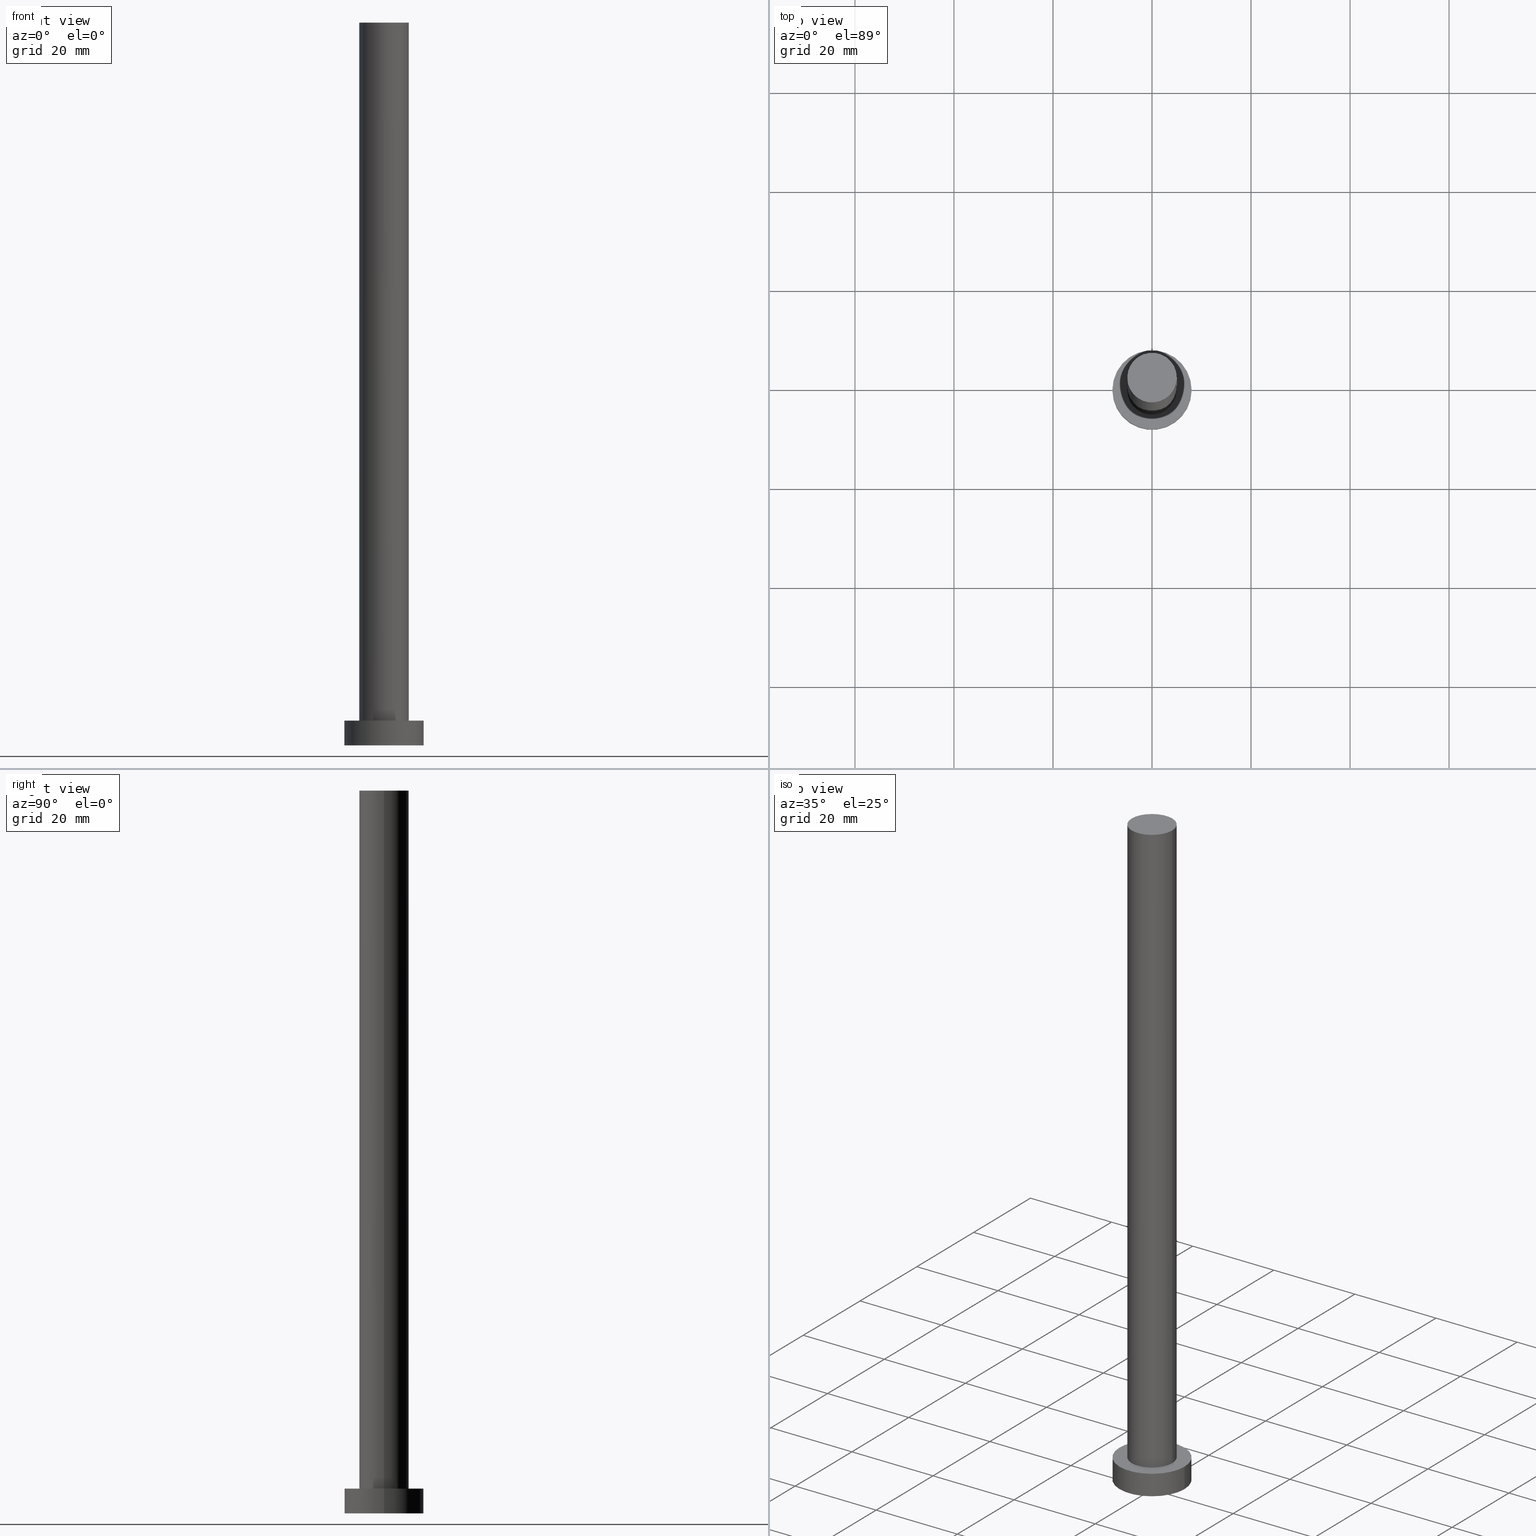
[diagram: canonical four-view strip — front | top / right | iso, engineering-drawing reading convention]
A machine part, canonical four-view strip (front | top / right | iso — engineering-drawing reading convention). The complete STEP part file that produces these views, byte-faithful:
ISO-10303-21;
HEADER;
FILE_DESCRIPTION (( 'STEP AP203' ),
    '1' );
FILE_NAME ('3bc6.STEP',
    '2023-09-27T12:18:32',
    ( '' ),
    ( '' ),
    'SwSTEP 2.0',
    'SolidWorks 2019',
    '' );
FILE_SCHEMA (( 'CONFIG_CONTROL_DESIGN' ));
ENDSEC;

DATA;
#1 = DATE_AND_TIME ( #38, #229 ) ;
#2 = DATE_AND_TIME ( #172, #245 ) ;
#3 = APPROVAL_ROLE ( '' ) ;
#4 = PERSON_AND_ORGANIZATION ( #146, #53 ) ;
#5 = CC_DESIGN_PERSON_AND_ORGANIZATION_ASSIGNMENT ( #194, #117, ( #247 ) ) ;
#6 = CARTESIAN_POINT ( 'NONE',  ( -5.000000000000000888, 0.000000000000000000, 146.0000000000000000 ) ) ;
#7 = CYLINDRICAL_SURFACE ( 'NONE', #76, 5.000000000000000888 ) ;
#8 = ORIENTED_EDGE ( 'NONE', *, *, #160, .T. ) ;
#9 = ORIENTED_EDGE ( 'NONE', *, *, #132, .T. ) ;
#10 = ORIENTED_EDGE ( 'NONE', *, *, #187, .F. ) ;
#11 = DIRECTION ( 'NONE',  ( 1.000000000000000000, 0.000000000000000000, 0.000000000000000000 ) ) ;
#12 = LINE ( 'NONE', #230, #195 ) ;
#13 = DIRECTION ( 'NONE',  ( 0.000000000000000000, 0.000000000000000000, 1.000000000000000000 ) ) ;
#14 = AXIS2_PLACEMENT_3D ( 'NONE', #84, #159, #22 ) ;
#15 = DIRECTION ( 'NONE',  ( 1.000000000000000000, 0.000000000000000000, 0.000000000000000000 ) ) ;
#16 = DIRECTION ( 'NONE',  ( -0.000000000000000000, -0.000000000000000000, -1.000000000000000000 ) ) ;
#17 = PERSON_AND_ORGANIZATION ( #146, #53 ) ;
#18 = ORIENTED_EDGE ( 'NONE', *, *, #157, .F. ) ;
#19 = AXIS2_PLACEMENT_3D ( 'NONE', #142, #181, #221 ) ;
#20 = PERSON_AND_ORGANIZATION_ROLE ( 'creator' ) ;
#21 = ADVANCED_FACE ( 'NONE', ( #177 ), #7, .T. ) ;
#22 = DIRECTION ( 'NONE',  ( 1.000000000000000000, 0.000000000000000000, 0.000000000000000000 ) ) ;
#23 = DIRECTION ( 'NONE',  ( -0.000000000000000000, -0.000000000000000000, -1.000000000000000000 ) ) ;
#24 = APPROVAL ( #234, 'NEUR�EN�' ) ;
#25 = AXIS2_PLACEMENT_3D ( 'NONE', #128, #29, #104 ) ;
#26 = EDGE_LOOP ( 'NONE', ( #71, #120 ) ) ;
#27 =( GEOMETRIC_REPRESENTATION_CONTEXT ( 3 ) GLOBAL_UNCERTAINTY_ASSIGNED_CONTEXT ( ( #166 ) ) GLOBAL_UNIT_ASSIGNED_CONTEXT ( ( #110, #56, #150 ) ) REPRESENTATION_CONTEXT ( 'NONE', 'WORKASPACE' ) );
#28 = EDGE_LOOP ( 'NONE', ( #10, #148, #162, #83 ) ) ;
#29 = DIRECTION ( 'NONE',  ( 0.000000000000000000, 0.000000000000000000, 1.000000000000000000 ) ) ;
#30 = PLANE ( 'NONE',  #81 ) ;
#31 = DIRECTION ( 'NONE',  ( -0.000000000000000000, -0.000000000000000000, -1.000000000000000000 ) ) ;
#32 = DIRECTION ( 'NONE',  ( 0.000000000000000000, 0.000000000000000000, 1.000000000000000000 ) ) ;
#33 = EDGE_CURVE ( 'NONE', #47, #106, #70, .T. ) ;
#34 = DIRECTION ( 'NONE',  ( 0.000000000000000000, 0.000000000000000000, 1.000000000000000000 ) ) ;
#35 = APPROVAL_PERSON_ORGANIZATION ( #57, #24, #135 ) ;
#36 = CYLINDRICAL_SURFACE ( 'NONE', #190, 8.000000000000000000 ) ;
#37 = COORDINATED_UNIVERSAL_TIME_OFFSET ( 1, 0, .AHEAD. ) ;
#38 = CALENDAR_DATE ( 2023, 27, 9 ) ;
#39 = AXIS2_PLACEMENT_3D ( 'NONE', #91, #248, #188 ) ;
#40 = APPROVAL_DATE_TIME ( #96, #235 ) ;
#41 = DATE_AND_TIME ( #136, #64 ) ;
#42 = ADVANCED_FACE ( 'NONE', ( #227, #50 ), #122, .T. ) ;
#43 = CALENDAR_DATE ( 2023, 27, 9 ) ;
#44 = AXIS2_PLACEMENT_3D ( 'NONE', #168, #231, #113 ) ;
#45 = EDGE_LOOP ( 'NONE', ( #127, #61 ) ) ;
#46 = CARTESIAN_POINT ( 'NONE',  ( 8.000000000000000000, 9.797174393178825657E-16, 0.000000000000000000 ) ) ;
#47 = VERTEX_POINT ( 'NONE', #180 ) ;
#48 = FACE_OUTER_BOUND ( 'NONE', #26, .T. ) ;
#49 = EDGE_CURVE ( 'NONE', #106, #47, #94, .T. ) ;
#50 = FACE_OUTER_BOUND ( 'NONE', #155, .T. ) ;
#51 = DIRECTION ( 'NONE',  ( 0.000000000000000000, 0.000000000000000000, 1.000000000000000000 ) ) ;
#52 = AXIS2_PLACEMENT_3D ( 'NONE', #69, #34, #186 ) ;
#53 = ORGANIZATION ( 'NEUR�EN�', 'NEUR�EN�', '' ) ;
#54 = CC_DESIGN_PERSON_AND_ORGANIZATION_ASSIGNMENT ( #4, #121, ( #178 ) ) ;
#55 = LINE ( 'NONE', #192, #216 ) ;
#56 =( NAMED_UNIT ( * ) PLANE_ANGLE_UNIT ( ) SI_UNIT ( $, .RADIAN. ) );
#57 = PERSON_AND_ORGANIZATION ( #146, #53 ) ;
#58 = CIRCLE ( 'NONE', #86, 5.000000000000000888 ) ;
#59 = SHAPE_DEFINITION_REPRESENTATION ( #126, #80 ) ;
#60 = DIRECTION ( 'NONE',  ( 1.000000000000000000, 0.000000000000000000, 0.000000000000000000 ) ) ;
#61 = ORIENTED_EDGE ( 'NONE', *, *, #132, .F. ) ;
#62 = ORIENTED_EDGE ( 'NONE', *, *, #160, .F. ) ;
#63 = CARTESIAN_POINT ( 'NONE',  ( 8.000000000000000000, 9.797174393178825657E-16, 5.000000000000000000 ) ) ;
#64 = LOCAL_TIME ( 14, 18, 32.00000000000000000, #37 ) ;
#65 = EDGE_CURVE ( 'NONE', #164, #66, #58, .T. ) ;
#66 = VERTEX_POINT ( 'NONE', #206 ) ;
#67 = APPLICATION_PROTOCOL_DEFINITION ( 'international standard', 'config_control_design', 1994, #115 ) ;
#68 = PRODUCT_DEFINITION ( 'NEZN�M�', '', #178, #182 ) ;
#69 = CARTESIAN_POINT ( 'NONE',  ( 0.000000000000000000, 0.000000000000000000, 146.0000000000000000 ) ) ;
#70 = CIRCLE ( 'NONE', #214, 8.000000000000000000 ) ;
#71 = ORIENTED_EDGE ( 'NONE', *, *, #119, .T. ) ;
#72 = PERSON_AND_ORGANIZATION ( #146, #53 ) ;
#73 = DATE_TIME_ROLE ( 'classification_date' ) ;
#74 = CC_DESIGN_PERSON_AND_ORGANIZATION_ASSIGNMENT ( #17, #20, ( #178 ) ) ;
#75 = VERTEX_POINT ( 'NONE', #63 ) ;
#76 = AXIS2_PLACEMENT_3D ( 'NONE', #123, #176, #147 ) ;
#77 = APPROVAL_ROLE ( '' ) ;
#78 = MANIFOLD_SOLID_BREP ( 'P�idat vysunut�m3', #99 ) ;
#79 = DIRECTION ( 'NONE',  ( 1.000000000000000000, 0.000000000000000000, 0.000000000000000000 ) ) ;
#80 = ADVANCED_BREP_SHAPE_REPRESENTATION ( '3bc6', ( #78, #184 ), #27 ) ;
#81 = AXIS2_PLACEMENT_3D ( 'NONE', #250, #111, #207 ) ;
#82 = VERTEX_POINT ( 'NONE', #6 ) ;
#83 = ORIENTED_EDGE ( 'NONE', *, *, #205, .F. ) ;
#84 = CARTESIAN_POINT ( 'NONE',  ( 0.000000000000000000, 0.000000000000000000, 0.000000000000000000 ) ) ;
#85 = ADVANCED_FACE ( 'NONE', ( #48 ), #143, .T. ) ;
#86 = AXIS2_PLACEMENT_3D ( 'NONE', #241, #244, #60 ) ;
#87 = ORIENTED_EDGE ( 'NONE', *, *, #49, .F. ) ;
#88 = DIRECTION ( 'NONE',  ( -0.000000000000000000, -0.000000000000000000, -1.000000000000000000 ) ) ;
#89 = DIRECTION ( 'NONE',  ( -1.000000000000000000, 0.000000000000000000, 0.000000000000000000 ) ) ;
#90 = APPROVAL_PERSON_ORGANIZATION ( #72, #235, #3 ) ;
#91 = CARTESIAN_POINT ( 'NONE',  ( 0.000000000000000000, 0.000000000000000000, 146.0000000000000000 ) ) ;
#92 = LINE ( 'NONE', #130, #137 ) ;
#93 = EDGE_CURVE ( 'NONE', #75, #106, #202, .T. ) ;
#94 = CIRCLE ( 'NONE', #14, 8.000000000000000000 ) ;
#95 = EDGE_LOOP ( 'NONE', ( #246, #102, #9, #62 ) ) ;
#96 = DATE_AND_TIME ( #153, #237 ) ;
#97 = PRODUCT_RELATED_PRODUCT_CATEGORY ( 'detail', '', ( #247 ) ) ;
#98 = PERSON_AND_ORGANIZATION ( #146, #53 ) ;
#99 = CLOSED_SHELL ( 'NONE', ( #114, #232, #252, #42, #183, #21, #85 ) ) ;
#100 = SECURITY_CLASSIFICATION ( '', '', #171 ) ;
#101 = PERSON_AND_ORGANIZATION ( #146, #53 ) ;
#102 = ORIENTED_EDGE ( 'NONE', *, *, #213, .T. ) ;
#103 = CARTESIAN_POINT ( 'NONE',  ( -8.000000000000000000, 0.000000000000000000, 5.000000000000000000 ) ) ;
#104 = DIRECTION ( 'NONE',  ( 1.000000000000000000, 0.000000000000000000, -0.000000000000000000 ) ) ;
#105 = APPROVAL ( #236, 'NEUR�EN�' ) ;
#106 = VERTEX_POINT ( 'NONE', #46 ) ;
#107 = VERTEX_POINT ( 'NONE', #103 ) ;
#108 = DIRECTION ( 'NONE',  ( -0.000000000000000000, -0.000000000000000000, -1.000000000000000000 ) ) ;
#109 = CC_DESIGN_APPROVAL ( #24, ( #68 ) ) ;
#110 =( LENGTH_UNIT ( ) NAMED_UNIT ( * ) SI_UNIT ( .MILLI., .METRE. ) );
#111 = DIRECTION ( 'NONE',  ( 0.000000000000000000, 0.000000000000000000, 1.000000000000000000 ) ) ;
#112 = AXIS2_PLACEMENT_3D ( 'NONE', #165, #13, #191 ) ;
#113 = DIRECTION ( 'NONE',  ( 1.000000000000000000, 0.000000000000000000, 0.000000000000000000 ) ) ;
#114 = ADVANCED_FACE ( 'NONE', ( #203 ), #179, .T. ) ;
#115 = APPLICATION_CONTEXT ( 'configuration controlled 3d designs of mechanical parts and assemblies' ) ;
#116 = PERSON_AND_ORGANIZATION_ROLE ( 'creator' ) ;
#117 = PERSON_AND_ORGANIZATION_ROLE ( 'design_owner' ) ;
#118 = CIRCLE ( 'NONE', #189, 5.000000000000000888 ) ;
#119 = EDGE_CURVE ( 'NONE', #82, #125, #239, .T. ) ;
#120 = ORIENTED_EDGE ( 'NONE', *, *, #139, .T. ) ;
#121 = PERSON_AND_ORGANIZATION_ROLE ( 'design_supplier' ) ;
#122 = PLANE ( 'NONE',  #25 ) ;
#123 = CARTESIAN_POINT ( 'NONE',  ( 0.000000000000000000, 0.000000000000000000, 146.0000000000000000 ) ) ;
#124 = AXIS2_PLACEMENT_3D ( 'NONE', #211, #149, #11 ) ;
#125 = VERTEX_POINT ( 'NONE', #253 ) ;
#126 = PRODUCT_DEFINITION_SHAPE ( 'NONE', 'NONE',  #68 ) ;
#127 = ORIENTED_EDGE ( 'NONE', *, *, #65, .F. ) ;
#128 = CARTESIAN_POINT ( 'NONE',  ( 0.000000000000000000, 0.000000000000000000, 5.000000000000000000 ) ) ;
#129 = FACE_OUTER_BOUND ( 'NONE', #199, .T. ) ;
#130 = CARTESIAN_POINT ( 'NONE',  ( 5.000000000000000888, 6.123233995736767268E-16, 146.0000000000000000 ) ) ;
#131 = CYLINDRICAL_SURFACE ( 'NONE', #141, 8.000000000000000000 ) ;
#132 = EDGE_CURVE ( 'NONE', #66, #164, #118, .T. ) ;
#133 = CARTESIAN_POINT ( 'NONE',  ( -5.000000000000000888, 0.000000000000000000, 5.000000000000000000 ) ) ;
#134 = LOCAL_TIME ( 14, 18, 32.00000000000000000, #219 ) ;
#135 = APPROVAL_ROLE ( '' ) ;
#136 = CALENDAR_DATE ( 2023, 27, 9 ) ;
#137 = VECTOR ( 'NONE', #31, 1000.000000000000000 ) ;
#138 = APPLICATION_PROTOCOL_DEFINITION ( 'international standard', 'config_control_design', 1994, #173 ) ;
#139 = EDGE_CURVE ( 'NONE', #125, #82, #224, .T. ) ;
#140 = ORIENTED_EDGE ( 'NONE', *, *, #119, .F. ) ;
#141 = AXIS2_PLACEMENT_3D ( 'NONE', #209, #169, #89 ) ;
#142 = CARTESIAN_POINT ( 'NONE',  ( 0.000000000000000000, 0.000000000000000000, 146.0000000000000000 ) ) ;
#143 = PLANE ( 'NONE',  #19 ) ;
#144 = CC_DESIGN_DATE_AND_TIME_ASSIGNMENT ( #2, #73, ( #100 ) ) ;
#145 = ORIENTED_EDGE ( 'NONE', *, *, #33, .T. ) ;
#146 = PERSON ( 'NEUR�EN�', 'NEUR�EN�', 'NEUR�EN�', ('NEUR�EN�'), ('NEUR�EN�'), ('NEUR�EN�') ) ;
#147 = DIRECTION ( 'NONE',  ( -1.000000000000000000, 0.000000000000000000, 0.000000000000000000 ) ) ;
#148 = ORIENTED_EDGE ( 'NONE', *, *, #93, .T. ) ;
#149 = DIRECTION ( 'NONE',  ( 0.000000000000000000, 0.000000000000000000, 1.000000000000000000 ) ) ;
#150 =( NAMED_UNIT ( * ) SI_UNIT ( $, .STERADIAN. ) SOLID_ANGLE_UNIT ( ) );
#151 = CIRCLE ( 'NONE', #44, 8.000000000000000000 ) ;
#152 = APPROVAL_STATUS ( 'not_yet_approved' ) ;
#153 = CALENDAR_DATE ( 2023, 27, 9 ) ;
#154 = VECTOR ( 'NONE', #23, 1000.000000000000000 ) ;
#155 = EDGE_LOOP ( 'NONE', ( #201, #223 ) ) ;
#156 = ORIENTED_EDGE ( 'NONE', *, *, #33, .F. ) ;
#157 = EDGE_CURVE ( 'NONE', #107, #75, #151, .T. ) ;
#158 = APPROVAL_DATE_TIME ( #200, #105 ) ;
#159 = DIRECTION ( 'NONE',  ( 0.000000000000000000, 0.000000000000000000, 1.000000000000000000 ) ) ;
#160 = EDGE_CURVE ( 'NONE', #82, #164, #12, .T. ) ;
#161 = CARTESIAN_POINT ( 'NONE',  ( 0.000000000000000000, 0.000000000000000000, 0.000000000000000000 ) ) ;
#162 = ORIENTED_EDGE ( 'NONE', *, *, #49, .T. ) ;
#163 = EDGE_LOOP ( 'NONE', ( #220, #140, #8, #242 ) ) ;
#164 = VERTEX_POINT ( 'NONE', #133 ) ;
#165 = CARTESIAN_POINT ( 'NONE',  ( 0.000000000000000000, 0.000000000000000000, 146.0000000000000000 ) ) ;
#166 = UNCERTAINTY_MEASURE_WITH_UNIT (LENGTH_MEASURE( 1.000000000000000082E-05 ), #110, 'distance_accuracy_value', 'NONE');
#167 = DIRECTION ( 'NONE',  ( -1.000000000000000000, 0.000000000000000000, 0.000000000000000000 ) ) ;
#168 = CARTESIAN_POINT ( 'NONE',  ( 0.000000000000000000, 0.000000000000000000, 5.000000000000000000 ) ) ;
#169 = DIRECTION ( 'NONE',  ( -0.000000000000000000, -0.000000000000000000, -1.000000000000000000 ) ) ;
#170 = FACE_OUTER_BOUND ( 'NONE', #204, .T. ) ;
#171 = SECURITY_CLASSIFICATION_LEVEL ( 'unclassified' ) ;
#172 = CALENDAR_DATE ( 2023, 27, 9 ) ;
#173 = APPLICATION_CONTEXT ( 'configuration controlled 3d designs of mechanical parts and assemblies' ) ;
#174 = PERSON_AND_ORGANIZATION ( #146, #53 ) ;
#175 = COORDINATED_UNIVERSAL_TIME_OFFSET ( 1, 0, .AHEAD. ) ;
#176 = DIRECTION ( 'NONE',  ( -0.000000000000000000, -0.000000000000000000, -1.000000000000000000 ) ) ;
#177 = FACE_OUTER_BOUND ( 'NONE', #163, .T. ) ;
#178 = PRODUCT_DEFINITION_FORMATION_WITH_SPECIFIED_SOURCE ( 'LIBOVOLN�', '', #247, .NOT_KNOWN. ) ;
#179 = CYLINDRICAL_SURFACE ( 'NONE', #39, 5.000000000000000888 ) ;
#180 = CARTESIAN_POINT ( 'NONE',  ( -8.000000000000000000, 0.000000000000000000, 0.000000000000000000 ) ) ;
#181 = DIRECTION ( 'NONE',  ( 0.000000000000000000, 0.000000000000000000, 1.000000000000000000 ) ) ;
#182 = DESIGN_CONTEXT ( 'detailed design', #173, 'design' ) ;
#183 = ADVANCED_FACE ( 'NONE', ( #129 ), #30, .F. ) ;
#184 = AXIS2_PLACEMENT_3D ( 'NONE', #208, #32, #218 ) ;
#185 = FACE_OUTER_BOUND ( 'NONE', #28, .T. ) ;
#186 = DIRECTION ( 'NONE',  ( 1.000000000000000000, 0.000000000000000000, 0.000000000000000000 ) ) ;
#187 = EDGE_CURVE ( 'NONE', #75, #107, #249, .T. ) ;
#188 = DIRECTION ( 'NONE',  ( -1.000000000000000000, 0.000000000000000000, 0.000000000000000000 ) ) ;
#189 = AXIS2_PLACEMENT_3D ( 'NONE', #228, #51, #15 ) ;
#190 = AXIS2_PLACEMENT_3D ( 'NONE', #251, #88, #167 ) ;
#191 = DIRECTION ( 'NONE',  ( 1.000000000000000000, 0.000000000000000000, 0.000000000000000000 ) ) ;
#192 = CARTESIAN_POINT ( 'NONE',  ( -8.000000000000000000, 0.000000000000000000, 5.000000000000000000 ) ) ;
#193 = COORDINATED_UNIVERSAL_TIME_OFFSET ( 1, 0, .AHEAD. ) ;
#194 = PERSON_AND_ORGANIZATION ( #146, #53 ) ;
#195 = VECTOR ( 'NONE', #108, 1000.000000000000000 ) ;
#196 = CC_DESIGN_SECURITY_CLASSIFICATION ( #100, ( #178 ) ) ;
#197 = MECHANICAL_CONTEXT ( 'NONE', #115, 'mechanical' ) ;
#198 = CC_DESIGN_PERSON_AND_ORGANIZATION_ASSIGNMENT ( #98, #255, ( #100 ) ) ;
#199 = EDGE_LOOP ( 'NONE', ( #156, #87 ) ) ;
#200 = DATE_AND_TIME ( #43, #134 ) ;
#201 = ORIENTED_EDGE ( 'NONE', *, *, #157, .T. ) ;
#202 = LINE ( 'NONE', #222, #154 ) ;
#203 = FACE_OUTER_BOUND ( 'NONE', #95, .T. ) ;
#204 = EDGE_LOOP ( 'NONE', ( #238, #18, #240, #145 ) ) ;
#205 = EDGE_CURVE ( 'NONE', #107, #47, #55, .T. ) ;
#206 = CARTESIAN_POINT ( 'NONE',  ( 5.000000000000000888, 6.123233995736767268E-16, 5.000000000000000000 ) ) ;
#207 = DIRECTION ( 'NONE',  ( 1.000000000000000000, 0.000000000000000000, -0.000000000000000000 ) ) ;
#208 = CARTESIAN_POINT ( 'NONE',  ( 0.000000000000000000, 0.000000000000000000, 0.000000000000000000 ) ) ;
#209 = CARTESIAN_POINT ( 'NONE',  ( 0.000000000000000000, 0.000000000000000000, 5.000000000000000000 ) ) ;
#210 = CC_DESIGN_APPROVAL ( #235, ( #178 ) ) ;
#211 = CARTESIAN_POINT ( 'NONE',  ( 0.000000000000000000, 0.000000000000000000, 5.000000000000000000 ) ) ;
#212 = COORDINATED_UNIVERSAL_TIME_OFFSET ( 1, 0, .AHEAD. ) ;
#213 = EDGE_CURVE ( 'NONE', #125, #66, #92, .T. ) ;
#214 = AXIS2_PLACEMENT_3D ( 'NONE', #161, #226, #79 ) ;
#215 = DATE_TIME_ROLE ( 'creation_date' ) ;
#216 = VECTOR ( 'NONE', #16, 1000.000000000000000 ) ;
#217 = CC_DESIGN_APPROVAL ( #105, ( #100 ) ) ;
#218 = DIRECTION ( 'NONE',  ( 1.000000000000000000, 0.000000000000000000, 0.000000000000000000 ) ) ;
#219 = COORDINATED_UNIVERSAL_TIME_OFFSET ( 1, 0, .AHEAD. ) ;
#220 = ORIENTED_EDGE ( 'NONE', *, *, #213, .F. ) ;
#221 = DIRECTION ( 'NONE',  ( 1.000000000000000000, 0.000000000000000000, -0.000000000000000000 ) ) ;
#222 = CARTESIAN_POINT ( 'NONE',  ( 8.000000000000000000, 9.797174393178825657E-16, 5.000000000000000000 ) ) ;
#223 = ORIENTED_EDGE ( 'NONE', *, *, #187, .T. ) ;
#224 = CIRCLE ( 'NONE', #112, 5.000000000000000888 ) ;
#225 = CC_DESIGN_DATE_AND_TIME_ASSIGNMENT ( #1, #215, ( #68 ) ) ;
#226 = DIRECTION ( 'NONE',  ( 0.000000000000000000, 0.000000000000000000, 1.000000000000000000 ) ) ;
#227 = FACE_BOUND ( 'NONE', #45, .T. ) ;
#228 = CARTESIAN_POINT ( 'NONE',  ( 0.000000000000000000, 0.000000000000000000, 5.000000000000000000 ) ) ;
#229 = LOCAL_TIME ( 14, 18, 32.00000000000000000, #193 ) ;
#230 = CARTESIAN_POINT ( 'NONE',  ( -5.000000000000000888, 0.000000000000000000, 146.0000000000000000 ) ) ;
#231 = DIRECTION ( 'NONE',  ( 0.000000000000000000, 0.000000000000000000, 1.000000000000000000 ) ) ;
#232 = ADVANCED_FACE ( 'NONE', ( #185 ), #131, .T. ) ;
#233 = APPROVAL_DATE_TIME ( #41, #24 ) ;
#234 = APPROVAL_STATUS ( 'not_yet_approved' ) ;
#235 = APPROVAL ( #152, 'NEUR�EN�' ) ;
#236 = APPROVAL_STATUS ( 'not_yet_approved' ) ;
#237 = LOCAL_TIME ( 14, 18, 32.00000000000000000, #175 ) ;
#238 = ORIENTED_EDGE ( 'NONE', *, *, #93, .F. ) ;
#239 = CIRCLE ( 'NONE', #52, 5.000000000000000888 ) ;
#240 = ORIENTED_EDGE ( 'NONE', *, *, #205, .T. ) ;
#241 = CARTESIAN_POINT ( 'NONE',  ( 0.000000000000000000, 0.000000000000000000, 5.000000000000000000 ) ) ;
#242 = ORIENTED_EDGE ( 'NONE', *, *, #65, .T. ) ;
#243 = CC_DESIGN_PERSON_AND_ORGANIZATION_ASSIGNMENT ( #174, #116, ( #68 ) ) ;
#244 = DIRECTION ( 'NONE',  ( 0.000000000000000000, 0.000000000000000000, 1.000000000000000000 ) ) ;
#245 = LOCAL_TIME ( 14, 18, 32.00000000000000000, #212 ) ;
#246 = ORIENTED_EDGE ( 'NONE', *, *, #139, .F. ) ;
#247 = PRODUCT ( '3bc6', '3bc6', '', ( #197 ) ) ;
#248 = DIRECTION ( 'NONE',  ( -0.000000000000000000, -0.000000000000000000, -1.000000000000000000 ) ) ;
#249 = CIRCLE ( 'NONE', #124, 8.000000000000000000 ) ;
#250 = CARTESIAN_POINT ( 'NONE',  ( 0.000000000000000000, 0.000000000000000000, 0.000000000000000000 ) ) ;
#251 = CARTESIAN_POINT ( 'NONE',  ( 0.000000000000000000, 0.000000000000000000, 5.000000000000000000 ) ) ;
#252 = ADVANCED_FACE ( 'NONE', ( #170 ), #36, .T. ) ;
#253 = CARTESIAN_POINT ( 'NONE',  ( 5.000000000000000888, 6.123233995736767268E-16, 146.0000000000000000 ) ) ;
#254 = APPROVAL_PERSON_ORGANIZATION ( #101, #105, #77 ) ;
#255 = PERSON_AND_ORGANIZATION_ROLE ( 'classification_officer' ) ;
ENDSEC;
END-ISO-10303-21;
